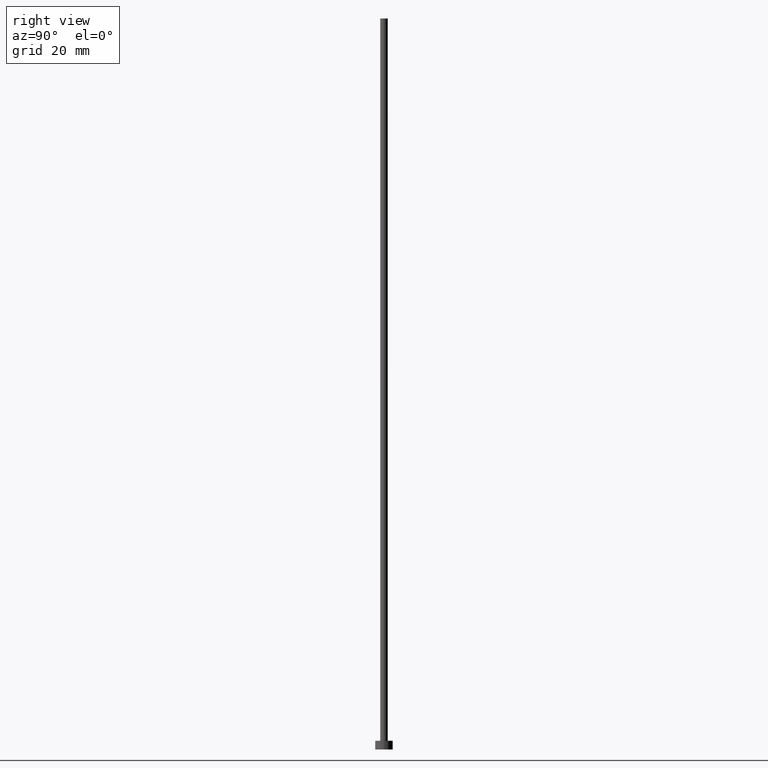
[diagram: clean part render]
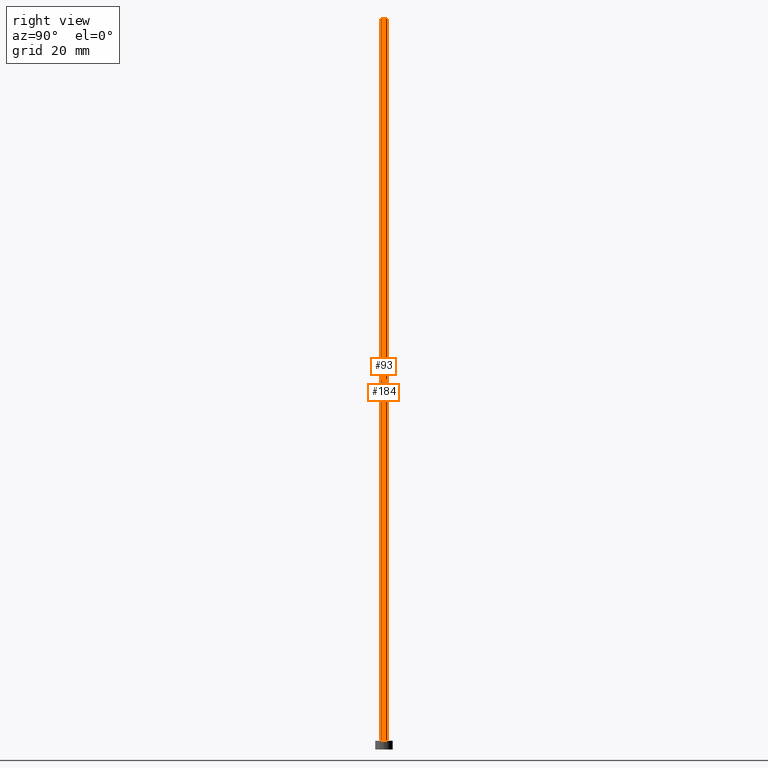
[diagram: same view with one multi-face feature highlighted, each face labeled with its STEP entity id]
A machine part, right view. The highlighted faces form ONE feature: a constant-radius fillet chain: 2 tangent blend faces with common blend radius 0.65 mm. The faces share edges in the B-rep.
Their STEP definitions:
[1] entity #184 (Cylinder):
#1 = CARTESIAN_POINT ( 'NONE',  ( -0.6500000000000000222, 0.000000000000000000, 125.0000000000000000 ) ) ;
#5 = ORIENTED_EDGE ( 'NONE', *, *, #244, .T. ) ;
#16 = EDGE_CURVE ( 'NONE', #92, #123, #187, .T. ) ;
#18 = AXIS2_PLACEMENT_3D ( 'NONE', #224, #120, #207 ) ;
#19 = CARTESIAN_POINT ( 'NONE',  ( -0.6500000000000000222, 0.000000000000000000, 125.0000000000000000 ) ) ;
#30 = DIRECTION ( 'NONE',  ( -0.000000000000000000, -0.000000000000000000, -1.000000000000000000 ) ) ;
#42 = AXIS2_PLACEMENT_3D ( 'NONE', #251, #231, #55 ) ;
#45 = VERTEX_POINT ( 'NONE', #143 ) ;
#48 = DIRECTION ( 'NONE',  ( -1.000000000000000000, 0.000000000000000000, 0.000000000000000000 ) ) ;
#52 = CARTESIAN_POINT ( 'NONE',  ( -0.6500000000000000222, 0.000000000000000000, 1.500000000000000000 ) ) ;
#54 = VECTOR ( 'NONE', #30, 1000.000000000000000 ) ;
#55 = DIRECTION ( 'NONE',  ( 1.000000000000000000, 0.000000000000000000, 0.000000000000000000 ) ) ;
#79 = CARTESIAN_POINT ( 'NONE',  ( 0.000000000000000000, 0.000000000000000000, 125.0000000000000000 ) ) ;
#86 = LINE ( 'NONE', #253, #54 ) ;
#92 = VERTEX_POINT ( 'NONE', #188 ) ;
#97 = VECTOR ( 'NONE', #100, 1000.000000000000000 ) ;
#100 = DIRECTION ( 'NONE',  ( -0.000000000000000000, -0.000000000000000000, -1.000000000000000000 ) ) ;
#102 = EDGE_CURVE ( 'NONE', #212, #123, #147, .T. ) ;
#107 = EDGE_CURVE ( 'NONE', #45, #212, #157, .T. ) ;
#120 = DIRECTION ( 'NONE',  ( 0.000000000000000000, 0.000000000000000000, 1.000000000000000000 ) ) ;
#123 = VERTEX_POINT ( 'NONE', #52 ) ;
#129 = CYLINDRICAL_SURFACE ( 'NONE', #215, 0.6500000000000000222 ) ;
#143 = CARTESIAN_POINT ( 'NONE',  ( 0.6500000000000000222, 7.960204194457795477E-17, 125.0000000000000000 ) ) ;
#147 = LINE ( 'NONE', #19, #97 ) ;
#155 = EDGE_LOOP ( 'NONE', ( #239, #5, #195, #240 ) ) ;
#157 = CIRCLE ( 'NONE', #42, 0.6500000000000000222 ) ;
#172 = DIRECTION ( 'NONE',  ( -0.000000000000000000, -0.000000000000000000, -1.000000000000000000 ) ) ;
#183 = FACE_OUTER_BOUND ( 'NONE', #155, .T. ) ;
#184 = ADVANCED_FACE ( 'NONE', ( #183 ), #129, .T. ) ;
#187 = CIRCLE ( 'NONE', #18, 0.6500000000000000222 ) ;
#188 = CARTESIAN_POINT ( 'NONE',  ( 0.6500000000000000222, 7.960204194457795477E-17, 1.500000000000000000 ) ) ;
#195 = ORIENTED_EDGE ( 'NONE', *, *, #16, .T. ) ;
#207 = DIRECTION ( 'NONE',  ( 1.000000000000000000, 0.000000000000000000, 0.000000000000000000 ) ) ;
#212 = VERTEX_POINT ( 'NONE', #1 ) ;
#215 = AXIS2_PLACEMENT_3D ( 'NONE', #79, #172, #48 ) ;
#224 = CARTESIAN_POINT ( 'NONE',  ( 0.000000000000000000, 0.000000000000000000, 1.500000000000000000 ) ) ;
#231 = DIRECTION ( 'NONE',  ( 0.000000000000000000, 0.000000000000000000, 1.000000000000000000 ) ) ;
#239 = ORIENTED_EDGE ( 'NONE', *, *, #107, .F. ) ;
#240 = ORIENTED_EDGE ( 'NONE', *, *, #102, .F. ) ;
#244 = EDGE_CURVE ( 'NONE', #45, #92, #86, .T. ) ;
#251 = CARTESIAN_POINT ( 'NONE',  ( 0.000000000000000000, 0.000000000000000000, 125.0000000000000000 ) ) ;
#253 = CARTESIAN_POINT ( 'NONE',  ( 0.6500000000000000222, 7.960204194457795477E-17, 125.0000000000000000 ) ) ;
[2] entity #93 (Cylinder):
#1 = CARTESIAN_POINT ( 'NONE',  ( -0.6500000000000000222, 0.000000000000000000, 125.0000000000000000 ) ) ;
#2 = AXIS2_PLACEMENT_3D ( 'NONE', #108, #27, #170 ) ;
#3 = DIRECTION ( 'NONE',  ( -0.000000000000000000, -0.000000000000000000, -1.000000000000000000 ) ) ;
#9 = AXIS2_PLACEMENT_3D ( 'NONE', #169, #3, #221 ) ;
#14 = ORIENTED_EDGE ( 'NONE', *, *, #102, .T. ) ;
#19 = CARTESIAN_POINT ( 'NONE',  ( -0.6500000000000000222, 0.000000000000000000, 125.0000000000000000 ) ) ;
#21 = ORIENTED_EDGE ( 'NONE', *, *, #250, .T. ) ;
#27 = DIRECTION ( 'NONE',  ( 0.000000000000000000, 0.000000000000000000, 1.000000000000000000 ) ) ;
#30 = DIRECTION ( 'NONE',  ( -0.000000000000000000, -0.000000000000000000, -1.000000000000000000 ) ) ;
#38 = CIRCLE ( 'NONE', #85, 0.6500000000000000222 ) ;
#45 = VERTEX_POINT ( 'NONE', #143 ) ;
#52 = CARTESIAN_POINT ( 'NONE',  ( -0.6500000000000000222, 0.000000000000000000, 1.500000000000000000 ) ) ;
#54 = VECTOR ( 'NONE', #30, 1000.000000000000000 ) ;
#67 = CIRCLE ( 'NONE', #2, 0.6500000000000000222 ) ;
#78 = FACE_OUTER_BOUND ( 'NONE', #144, .T. ) ;
#85 = AXIS2_PLACEMENT_3D ( 'NONE', #148, #241, #249 ) ;
#86 = LINE ( 'NONE', #253, #54 ) ;
#92 = VERTEX_POINT ( 'NONE', #188 ) ;
#93 = ADVANCED_FACE ( 'NONE', ( #78 ), #186, .T. ) ;
#97 = VECTOR ( 'NONE', #100, 1000.000000000000000 ) ;
#100 = DIRECTION ( 'NONE',  ( -0.000000000000000000, -0.000000000000000000, -1.000000000000000000 ) ) ;
#102 = EDGE_CURVE ( 'NONE', #212, #123, #147, .T. ) ;
#108 = CARTESIAN_POINT ( 'NONE',  ( 0.000000000000000000, 0.000000000000000000, 1.500000000000000000 ) ) ;
#123 = VERTEX_POINT ( 'NONE', #52 ) ;
#127 = ORIENTED_EDGE ( 'NONE', *, *, #175, .F. ) ;
#143 = CARTESIAN_POINT ( 'NONE',  ( 0.6500000000000000222, 7.960204194457795477E-17, 125.0000000000000000 ) ) ;
#144 = EDGE_LOOP ( 'NONE', ( #176, #127, #14, #21 ) ) ;
#147 = LINE ( 'NONE', #19, #97 ) ;
#148 = CARTESIAN_POINT ( 'NONE',  ( 0.000000000000000000, 0.000000000000000000, 125.0000000000000000 ) ) ;
#169 = CARTESIAN_POINT ( 'NONE',  ( 0.000000000000000000, 0.000000000000000000, 125.0000000000000000 ) ) ;
#170 = DIRECTION ( 'NONE',  ( 1.000000000000000000, 0.000000000000000000, 0.000000000000000000 ) ) ;
#175 = EDGE_CURVE ( 'NONE', #212, #45, #38, .T. ) ;
#176 = ORIENTED_EDGE ( 'NONE', *, *, #244, .F. ) ;
#186 = CYLINDRICAL_SURFACE ( 'NONE', #9, 0.6500000000000000222 ) ;
#188 = CARTESIAN_POINT ( 'NONE',  ( 0.6500000000000000222, 7.960204194457795477E-17, 1.500000000000000000 ) ) ;
#212 = VERTEX_POINT ( 'NONE', #1 ) ;
#221 = DIRECTION ( 'NONE',  ( -1.000000000000000000, 0.000000000000000000, 0.000000000000000000 ) ) ;
#241 = DIRECTION ( 'NONE',  ( 0.000000000000000000, 0.000000000000000000, 1.000000000000000000 ) ) ;
#244 = EDGE_CURVE ( 'NONE', #45, #92, #86, .T. ) ;
#249 = DIRECTION ( 'NONE',  ( 1.000000000000000000, 0.000000000000000000, 0.000000000000000000 ) ) ;
#250 = EDGE_CURVE ( 'NONE', #123, #92, #67, .T. ) ;
#253 = CARTESIAN_POINT ( 'NONE',  ( 0.6500000000000000222, 7.960204194457795477E-17, 125.0000000000000000 ) ) ;